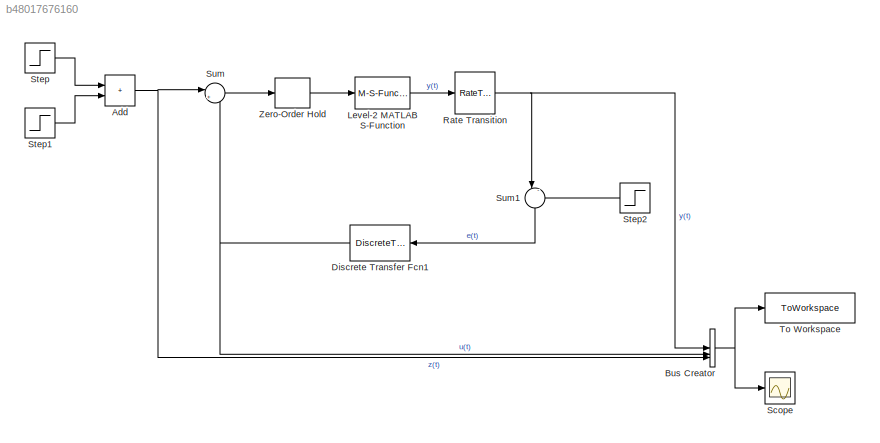
MODEL slx_b48017676160
KIND model
CONFIG AbsTol = auto
CONFIG EnableMultiTasking = off
CONFIG FixedStep = auto
CONFIG MaxStep = auto
CONFIG MinStep = auto
CONFIG RelTol = 1e-3
CONFIG SampleTimeConstraint = Unconstrained
CONFIG SolverName = VariableStepAuto
CONFIG StartTime = 0.0
CONFIG StopTime = 20.0
BLOCK [Sum] Add
  IconShape = rectangular
BLOCK [BusCreator] Bus Creator
  DisplayOption = bar
  InheritFromInputs = on
  Inputs = 3
BLOCK [DiscreteTransferFcn] Discrete Transfer Fcn1
  Denominator = cell2mat(discrete_regulator.Denominator)
  InputPortMap = u0
  NameLocation = top
  Numerator = cell2mat(discrete_regulator.Numerator)
BLOCK [M-S-Function] Level-2 MATLAB S-Function
  FunctionName = plant_sfun
  Parameters = odeHandleSimulink, p, u, outIdx
BLOCK [RateTransition] Rate Transition
BLOCK [Scope] Scope
  Floating = off
  NumInputPorts = 1
  ScopeSpecificationString = Simulink.scopes.TimeScopeBlockCfg('CurrentConfiguration', extmgr.ConfigurationSet(extmgr.Configuration('Core','General UI',true),extmgr.Configuration('Core','Source UI',true),extmgr.Configuration('Sources','WiredSimulink',true),extmgr.Configuration('Visuals','Time Domain',true,'SerializedDisplays',{struct('MinYLimReal','-0.38657','MaxYLimReal','3.4791','YLabelReal','','MinYLimMag','0.00000','MaxYL...<+1465ch>
BLOCK [Step] Step
  After = - z * u_control
  SampleTime = 0
  Time = disorder_times(1)
BLOCK [Step] Step1
  After = z * u_control
  SampleTime = 0
  Time = disorder_times(2)
BLOCK [Step] Step2
  After = u_control
  NameLocation = top
  SampleTime = 0
  Time = 0
BLOCK [Sum] Sum
  Inputs = |++
BLOCK [Sum] Sum1
  Inputs = |-+
  NameLocation = left
BLOCK [ToWorkspace] To Workspace
  FixptAsFi = on
  MaxDataPoints = inf
  SampleTime = -1
  SaveFormat = Timeseries
  VariableName = simout
BLOCK [ZeroOrderHold] Zero-Order Hold
  SampleTime = -1
NET Add:1 -> Bus Creator:3, Sum:1
NET Bus Creator:1 -> Scope:1, To Workspace:1
NET Discrete Transfer Fcn1:1 -> Bus Creator:2, Sum:2
LINE Level-2 MATLAB S-Function:1 -> Rate Transition:1
NET Rate Transition:1 -> Bus Creator:1, Sum1:1
LINE Step1:1 -> Add:2
LINE Step2:1 -> Sum1:2
LINE Step:1 -> Add:1
LINE Sum1:1 -> Discrete Transfer Fcn1:1
LINE Sum:1 -> Zero-Order Hold:1
LINE Zero-Order Hold:1 -> Level-2 MATLAB S-Function:1
note: NET lines group one-source signal fan-out (src -> all destinations, sorted); 1:1 wires keep LINE
